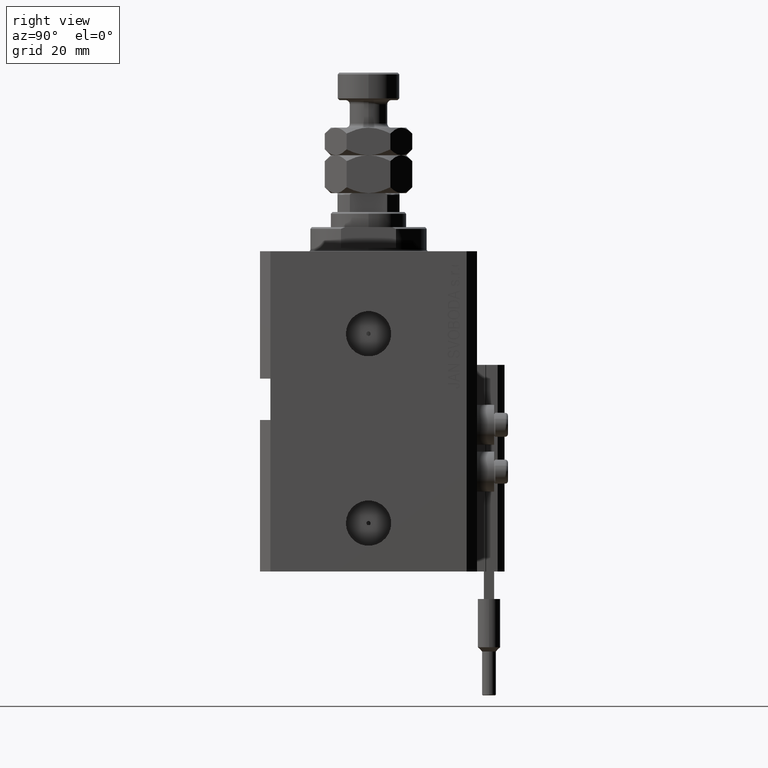
[diagram: clean part render]
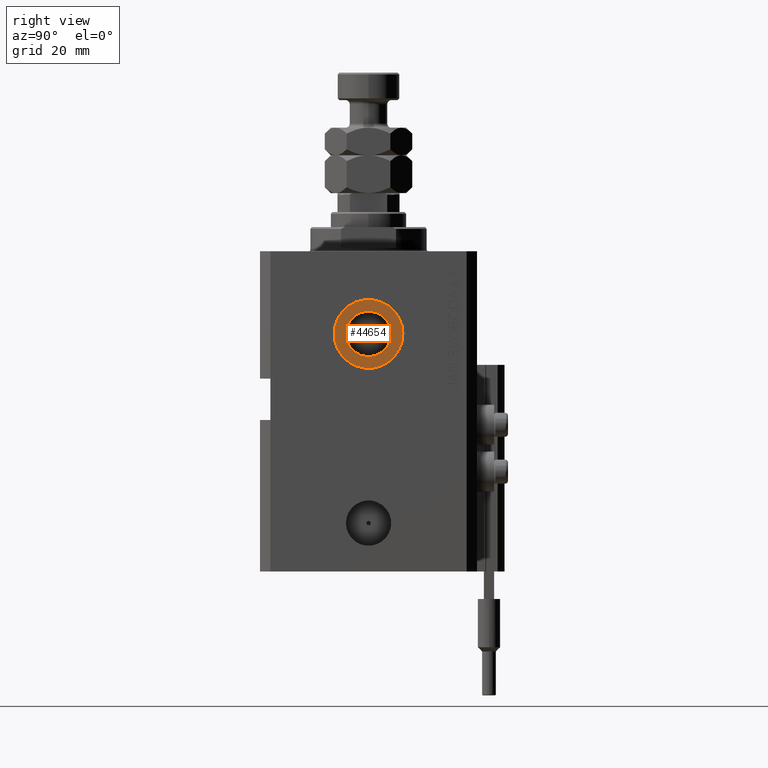
[diagram: same view with one face highlighted and labeled with its STEP entity id]
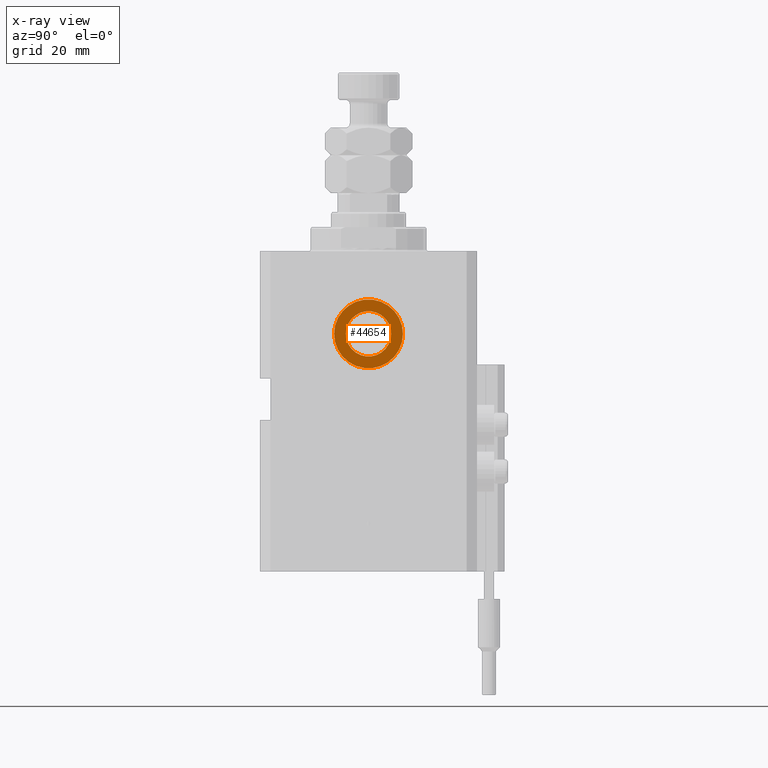
[diagram: x-ray of the same camera — body ghosted, the highlighted face saturated]
A machine part, right view. The second image highlights one B-rep face of the part: STEP entity #44654.
The next image is the same camera in x-ray: the body ghosted, the highlighted face saturated — about 0% of this face is hidden behind the body in this view.
In plain terms, the highlighted planar face has unit normal (1, -0, 0).
Its self-contained STEP definition (entity closure, byte-faithful):
#573 = FACE_OUTER_BOUND ( 'NONE', #9101, .T. ) ;
#3219 = ORIENTED_EDGE ( 'NONE', *, *, #13606, .F. ) ;
#3582 = VERTEX_POINT ( 'NONE', #30972 ) ;
#5305 = DIRECTION ( 'NONE',  ( 1.318389841742373392E-14, 1.000000000000000000, 0.000000000000000000 ) ) ;
#5476 = DIRECTION ( 'NONE',  ( 1.370906090437597808E-14, 1.000000000000000000, 0.000000000000000000 ) ) ;
#7013 = DIRECTION ( 'NONE',  ( 1.370906090437597808E-14, 1.000000000000000000, 0.000000000000000000 ) ) ;
#7039 = EDGE_CURVE ( 'NONE', #30155, #44653, #40392, .T. ) ;
#8174 = CARTESIAN_POINT ( 'NONE',  ( 42.40000000000026148, -3.763483751660370480E-13, -24.00000000000000000 ) ) ;
#8843 = VERTEX_POINT ( 'NONE', #41605 ) ;
#9101 = EDGE_LOOP ( 'NONE', ( #42809, #32693 ) ) ;
#10472 = AXIS2_PLACEMENT_3D ( 'NONE', #17213, #32933, #5305 ) ;
#12614 = CARTESIAN_POINT ( 'NONE',  ( 42.40000000000026148, -3.763483751660370480E-13, -24.00000000000000000 ) ) ;
#13606 = EDGE_CURVE ( 'NONE', #3582, #8843, #38194, .T. ) ;
#15639 = DIRECTION ( 'NONE',  ( 1.000000000000000000, -1.334402673828349134E-14, 0.000000000000000000 ) ) ;
#16031 = CARTESIAN_POINT ( 'NONE',  ( 42.40000000000039648, 9.999999999999623412, -24.00000000000000000 ) ) ;
#16623 = EDGE_CURVE ( 'NONE', #8843, #3582, #41522, .T. ) ;
#16704 = DIRECTION ( 'NONE',  ( 1.318389841742373392E-14, 1.000000000000000000, 0.000000000000000000 ) ) ;
#17133 = AXIS2_PLACEMENT_3D ( 'NONE', #34140, #15639, #7013 ) ;
#17213 = CARTESIAN_POINT ( 'NONE',  ( 42.40000000000026148, -3.763483751660370480E-13, -24.00000000000000000 ) ) ;
#17219 = EDGE_LOOP ( 'NONE', ( #3219, #43045 ) ) ;
#19068 = DIRECTION ( 'NONE',  ( 1.000000000000000000, -1.334402673828349134E-14, 0.000000000000000000 ) ) ;
#19672 = AXIS2_PLACEMENT_3D ( 'NONE', #12614, #47536, #5476 ) ;
#24408 = CARTESIAN_POINT ( 'NONE',  ( 42.40000000000013358, -10.00000000000037659, -24.00000000000000000 ) ) ;
#24973 = EDGE_CURVE ( 'NONE', #44653, #30155, #37713, .T. ) ;
#30155 = VERTEX_POINT ( 'NONE', #24408 ) ;
#30972 = CARTESIAN_POINT ( 'NONE',  ( 42.40000000000035385, 6.579999999999626148, -24.00000000000000000 ) ) ;
#31245 = PLANE ( 'NONE',  #39705 ) ;
#32173 = CARTESIAN_POINT ( 'NONE',  ( 42.40000000000026148, -3.763483751660370480E-13, -24.00000000000000000 ) ) ;
#32693 = ORIENTED_EDGE ( 'NONE', *, *, #7039, .T. ) ;
#32933 = DIRECTION ( 'NONE',  ( 1.000000000000000000, -1.334402673828349134E-14, 0.000000000000000000 ) ) ;
#34140 = CARTESIAN_POINT ( 'NONE',  ( 42.40000000000026148, -3.763483751660370480E-13, -24.00000000000000000 ) ) ;
#34541 = DIRECTION ( 'NONE',  ( 1.334402673828349134E-14, 1.000000000000000000, 0.000000000000000000 ) ) ;
#35045 = FACE_BOUND ( 'NONE', #17219, .T. ) ;
#37713 = CIRCLE ( 'NONE', #38518, 10.00000000000000000 ) ;
#38194 = CIRCLE ( 'NONE', #17133, 6.580000000000002736 ) ;
#38518 = AXIS2_PLACEMENT_3D ( 'NONE', #32173, #47593, #16704 ) ;
#39705 = AXIS2_PLACEMENT_3D ( 'NONE', #8174, #19068, #34541 ) ;
#40392 = CIRCLE ( 'NONE', #10472, 10.00000000000000000 ) ;
#41522 = CIRCLE ( 'NONE', #19672, 6.580000000000002736 ) ;
#41605 = CARTESIAN_POINT ( 'NONE',  ( 42.40000000000017621, -6.580000000000378435, -24.00000000000000000 ) ) ;
#42809 = ORIENTED_EDGE ( 'NONE', *, *, #24973, .T. ) ;
#43045 = ORIENTED_EDGE ( 'NONE', *, *, #16623, .F. ) ;
#44653 = VERTEX_POINT ( 'NONE', #16031 ) ;
#44654 = ADVANCED_FACE ( 'NONE', ( #35045, #573 ), #31245, .T. ) ;
#47536 = DIRECTION ( 'NONE',  ( 1.000000000000000000, -1.334402673828349134E-14, 0.000000000000000000 ) ) ;
#47593 = DIRECTION ( 'NONE',  ( 1.000000000000000000, -1.334402673828349134E-14, 0.000000000000000000 ) ) ;